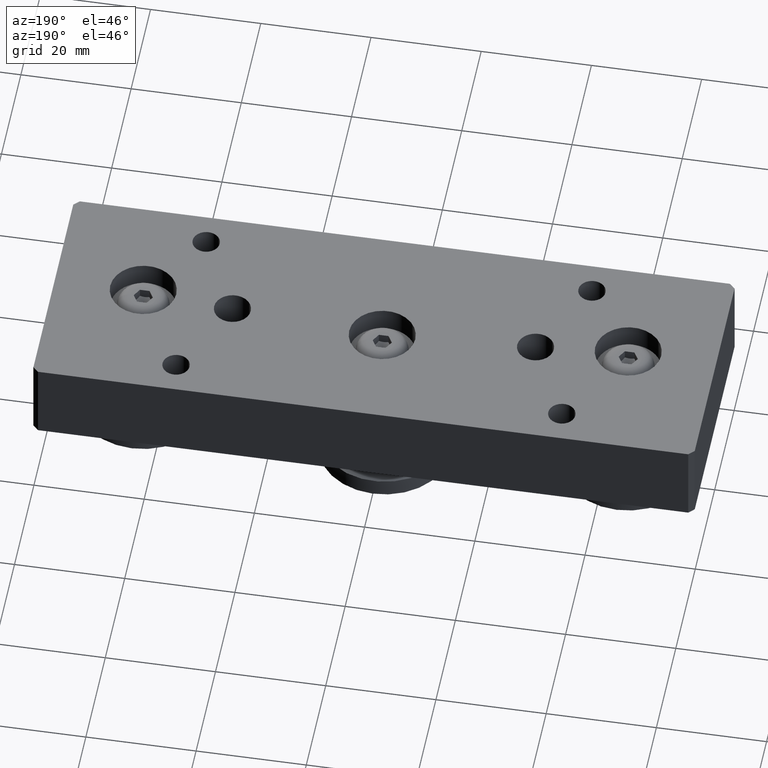
[diagram: clean part render]
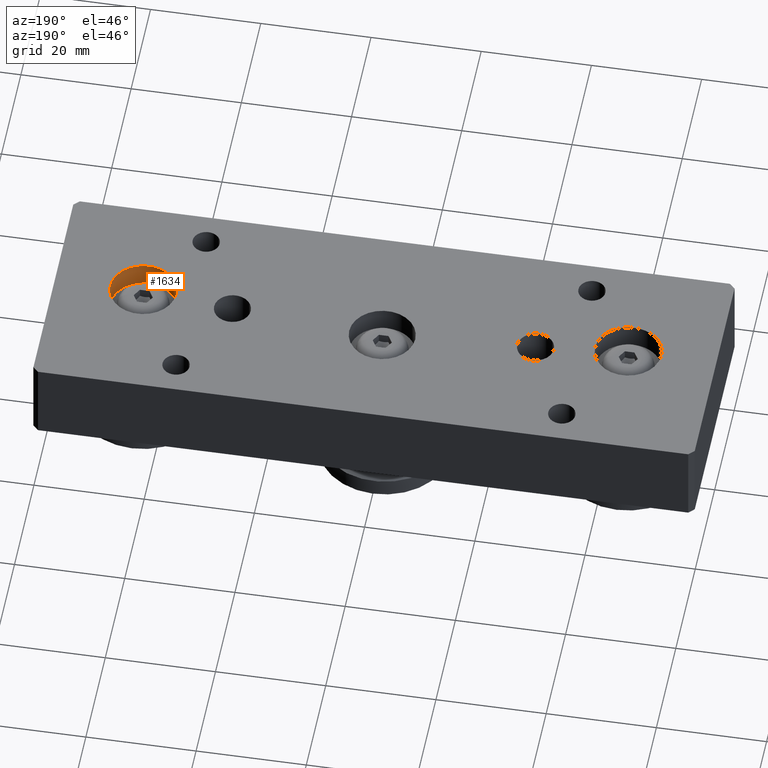
[diagram: same view with one face highlighted and labeled with its STEP entity id]
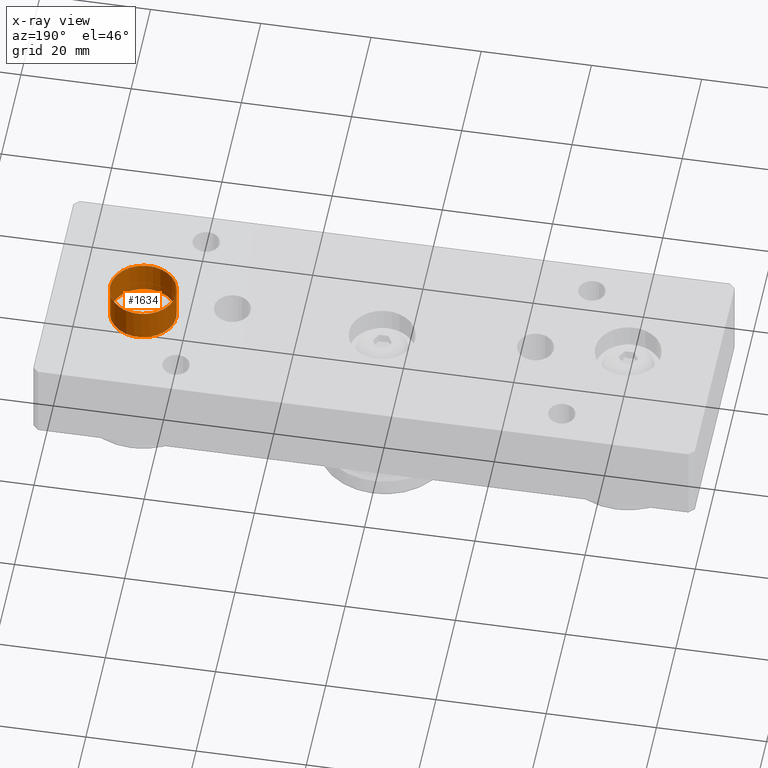
[diagram: x-ray of the same camera — body ghosted, the highlighted face saturated]
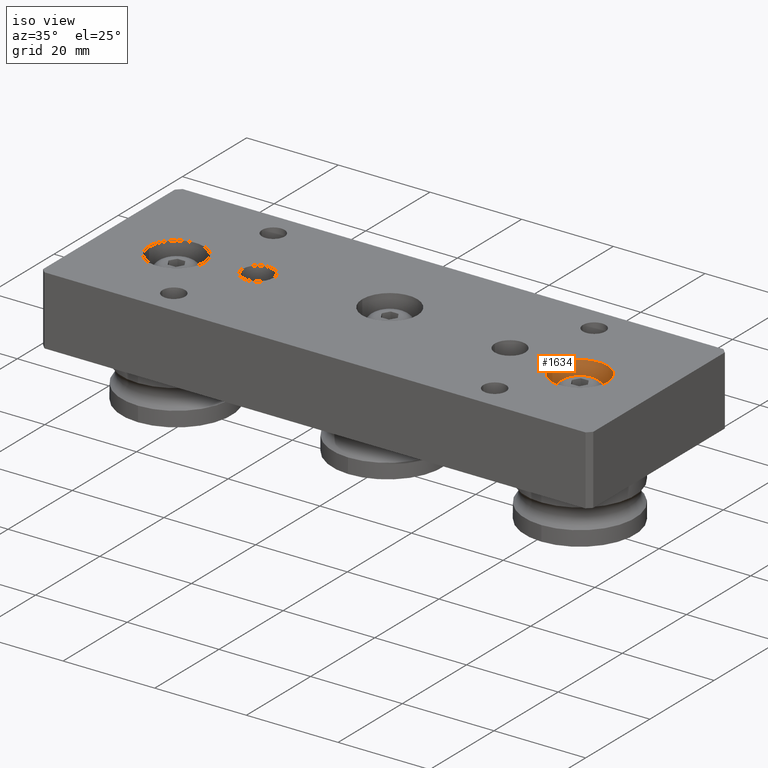
[diagram: same view with one face highlighted and labeled with its STEP entity id]
A machine part, auxiliary view. The second image highlights one B-rep face of the part: STEP entity #1634.
The next image is the same camera in x-ray: the body ghosted, the highlighted face saturated — about 0% of this face is hidden behind the body in this view.
A second angle (iso view) of the same face is appended — the face is thin or edge-on in the first view.
In plain terms, the highlighted cylindrical surface (bore or boss wall) has radius 6 mm, axis along (0, 0, 1).
Its self-contained STEP definition (entity closure, byte-faithful):
#126=CYLINDRICAL_SURFACE('',#1974,6.);
#220=CIRCLE('',#1972,6.);
#222=CIRCLE('',#1975,6.);
#310=FACE_OUTER_BOUND('',#426,.T.);
#426=EDGE_LOOP('',(#1222,#1223,#1224,#1225));
#575=LINE('',#2819,#691);
#691=VECTOR('',#2275,6.);
#811=VERTEX_POINT('',#2812);
#813=VERTEX_POINT('',#2817);
#972=EDGE_CURVE('',#811,#811,#220,.T.);
#974=EDGE_CURVE('',#813,#813,#222,.T.);
#975=EDGE_CURVE('',#813,#811,#575,.T.);
#1222=ORIENTED_EDGE('',*,*,#974,.F.);
#1223=ORIENTED_EDGE('',*,*,#975,.T.);
#1224=ORIENTED_EDGE('',*,*,#972,.F.);
#1225=ORIENTED_EDGE('',*,*,#975,.F.);
#1634=ADVANCED_FACE('',(#310),#126,.F.);
#1972=AXIS2_PLACEMENT_3D('',#2813,#2267,#2268);
#1974=AXIS2_PLACEMENT_3D('',#2816,#2271,#2272);
#1975=AXIS2_PLACEMENT_3D('',#2818,#2273,#2274);
#2267=DIRECTION('center_axis',(0.,0.,1.));
#2268=DIRECTION('ref_axis',(1.,0.,0.));
#2271=DIRECTION('center_axis',(0.,0.,1.));
#2272=DIRECTION('ref_axis',(1.,0.,0.));
#2273=DIRECTION('center_axis',(0.,0.,-1.));
#2274=DIRECTION('ref_axis',(1.,0.,0.));
#2275=DIRECTION('',(0.,0.,-1.));
#2812=CARTESIAN_POINT('',(38.,-1.8,1.5));
#2813=CARTESIAN_POINT('Origin',(44.,-1.8,1.5));
#2816=CARTESIAN_POINT('Origin',(44.,-1.8,4.5));
#2817=CARTESIAN_POINT('',(38.,-1.8,7.5));
#2818=CARTESIAN_POINT('Origin',(44.,-1.8,7.5));
#2819=CARTESIAN_POINT('',(38.,-1.8,4.5));